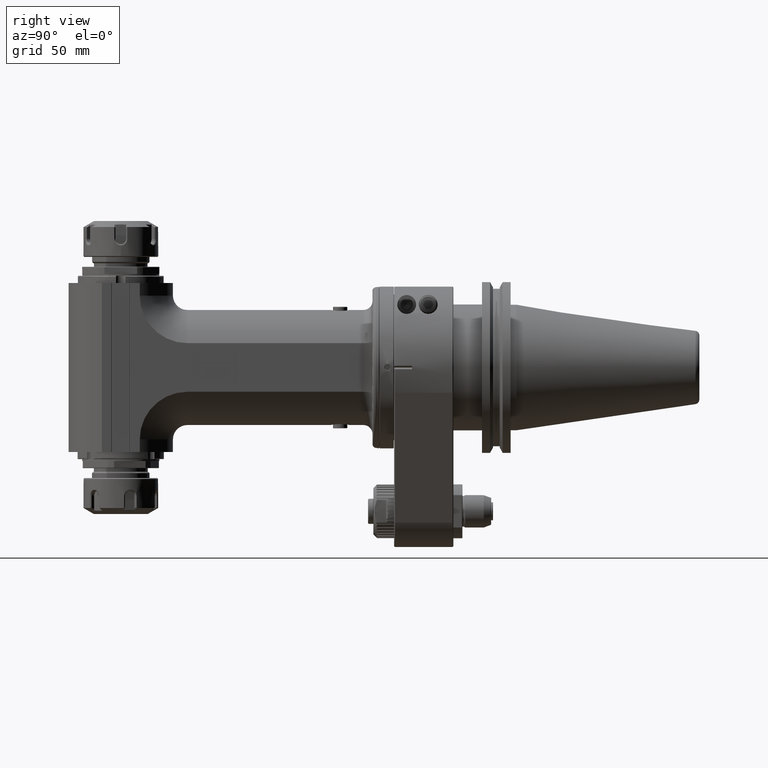
[diagram: clean part render]
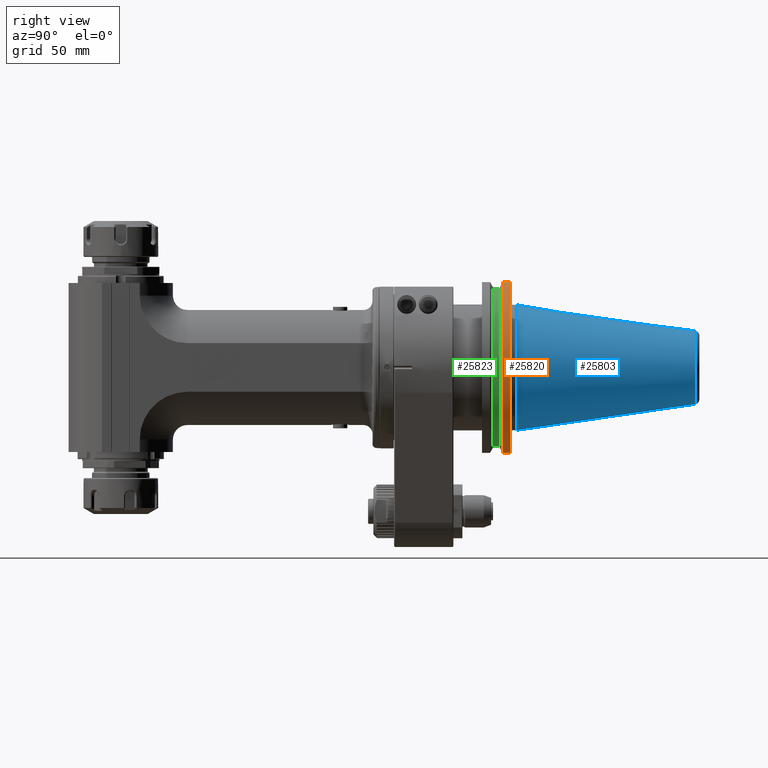
[diagram: same view with three faces highlighted in distinct colors, each labeled with its STEP entity id]
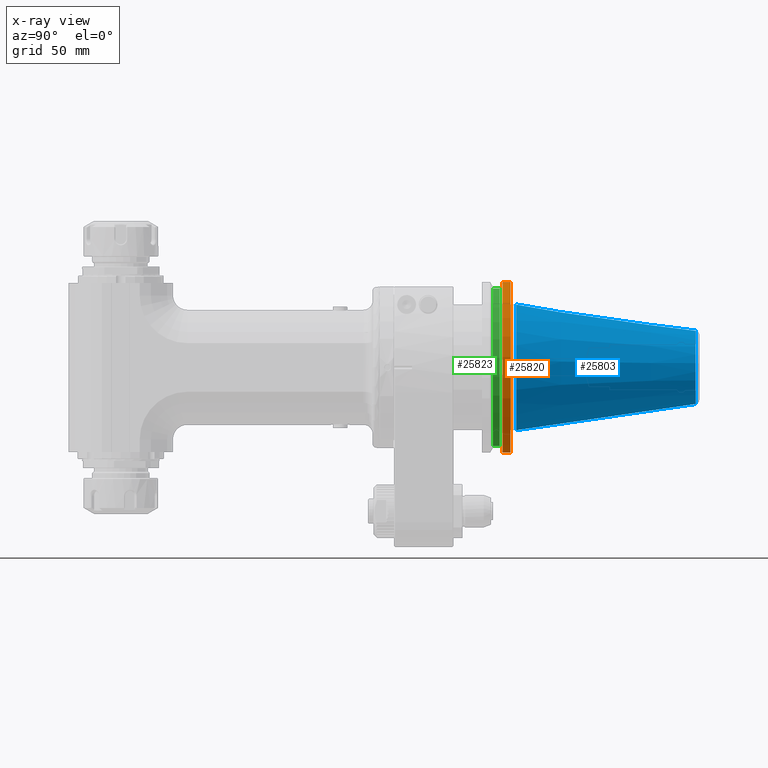
[diagram: x-ray of the same camera — body ghosted, the three highlighted faces saturated]
A machine part, right view with three faces highlighted in distinct colors.
The next image is the same camera in x-ray (body ghosted, the three faces saturated) — at least one of them is partly hidden behind the body in this view.
Their STEP definitions:

[orange] entity #25820 — the highlighted cylindrical surface (partial cylindrical patch) has radius 49.21 mm, axis along (0, -1, 0).
#1467=CIRCLE('',#27802,49.21);
#1478=CIRCLE('',#27828,49.21);
#2853=CYLINDRICAL_SURFACE('',#27827,49.21);
#3485=FACE_OUTER_BOUND('',#5056,.T.);
#5056=EDGE_LOOP('',(#19119,#19120,#19121,#19122));
#6972=LINE('',#40179,#8962);
#6992=LINE('',#40260,#8982);
#8962=VECTOR('',#31926,4.386823611981);
#8982=VECTOR('',#31986,4.386823611981);
#10994=VERTEX_POINT('',#40142);
#10995=VERTEX_POINT('',#40144);
#11007=VERTEX_POINT('',#40178);
#11030=VERTEX_POINT('',#40256);
#13992=EDGE_CURVE('',#10995,#10994,#1467,.T.);
#14007=EDGE_CURVE('',#10995,#11007,#6972,.T.);
#14042=EDGE_CURVE('',#11030,#10994,#6992,.T.);
#14043=EDGE_CURVE('',#11030,#11007,#1478,.T.);
#19119=ORIENTED_EDGE('',*,*,#14007,.F.);
#19120=ORIENTED_EDGE('',*,*,#13992,.T.);
#19121=ORIENTED_EDGE('',*,*,#14042,.F.);
#19122=ORIENTED_EDGE('',*,*,#14043,.T.);
#25820=ADVANCED_FACE('',(#3485),#2853,.T.);
#27802=AXIS2_PLACEMENT_3D('',#40145,#31905,#31906);
#27827=AXIS2_PLACEMENT_3D('',#40261,#31987,#31988);
#27828=AXIS2_PLACEMENT_3D('',#40262,#31989,#31990);
#31905=DIRECTION('center_axis',(0.,-1.,0.));
#31906=DIRECTION('ref_axis',(0.261125787441599,0.,-0.965304782508097));
#31926=DIRECTION('',(4.332751863939E-14,-1.,-8.422545679434E-14));
#31986=DIRECTION('',(-4.211272839717E-14,1.,-7.936629582543E-14));
#31987=DIRECTION('center_axis',(0.,-1.,0.));
#31988=DIRECTION('ref_axis',(0.,0.,1.));
#31989=DIRECTION('center_axis',(0.,1.,0.));
#31990=DIRECTION('ref_axis',(0.261125787441599,0.,0.965304782508097));
#40142=CARTESIAN_POINT('',(12.85,64.8,47.50264834722));
#40144=CARTESIAN_POINT('',(12.85,64.8,-47.50264834722));
#40145=CARTESIAN_POINT('Origin',(0.,64.8,-1.224645799147E-14));
#40178=CARTESIAN_POINT('',(12.85,60.41317638802,-47.50264834722));
#40179=CARTESIAN_POINT('',(12.85,64.8,-47.50264834722));
#40256=CARTESIAN_POINT('',(12.85,60.41317638802,47.50264834722));
#40260=CARTESIAN_POINT('',(12.85,60.41317638802,47.50264834722));
#40261=CARTESIAN_POINT('Origin',(0.,175.845,-1.224645799147E-14));
#40262=CARTESIAN_POINT('Origin',(0.,60.41317638802,-1.224645799147E-14));

[blue] entity #25803 — the highlighted conical surface has half-angle 8.3 deg.
#669=CONICAL_SURFACE('',#27796,27.65552420652,0.144862327915529);
#1461=CIRCLE('',#27793,20.38604841304);
#1463=CIRCLE('',#27795,20.38604841304);
#1464=CIRCLE('',#27797,34.925);
#3468=FACE_OUTER_BOUND('',#5036,.T.);
#5036=EDGE_LOOP('',(#19015,#19016,#19017,#19018,#19019));
#6955=LINE('',#40127,#8945);
#8945=VECTOR('',#31891,27.65552420652);
#10985=VERTEX_POINT('',#40119);
#10986=VERTEX_POINT('',#40120);
#10987=VERTEX_POINT('',#40125);
#13980=EDGE_CURVE('',#10985,#10986,#1461,.T.);
#13982=EDGE_CURVE('',#10986,#10985,#1463,.T.);
#13983=EDGE_CURVE('',#10987,#10987,#1464,.T.);
#13984=EDGE_CURVE('',#10987,#10986,#6955,.T.);
#19015=ORIENTED_EDGE('',*,*,#13983,.F.);
#19016=ORIENTED_EDGE('',*,*,#13984,.T.);
#19017=ORIENTED_EDGE('',*,*,#13982,.T.);
#19018=ORIENTED_EDGE('',*,*,#13980,.T.);
#19019=ORIENTED_EDGE('',*,*,#13984,.F.);
#25803=ADVANCED_FACE('',(#3468),#669,.T.);
#27793=AXIS2_PLACEMENT_3D('',#40121,#31881,#31882);
#27795=AXIS2_PLACEMENT_3D('',#40123,#31885,#31886);
#27796=AXIS2_PLACEMENT_3D('',#40124,#31887,#31888);
#27797=AXIS2_PLACEMENT_3D('',#40126,#31889,#31890);
#31881=DIRECTION('center_axis',(0.,-1.,0.));
#31882=DIRECTION('ref_axis',(0.00108059556212205,0.,0.999999416156445));
#31885=DIRECTION('center_axis',(0.,-1.,0.));
#31886=DIRECTION('ref_axis',(0.00108059556212205,0.,0.999999416156445));
#31887=DIRECTION('center_axis',(0.,-1.,0.));
#31888=DIRECTION('ref_axis',(0.,0.,1.));
#31889=DIRECTION('center_axis',(0.,-1.,0.));
#31890=DIRECTION('ref_axis',(0.,0.,-1.));
#31891=DIRECTION('',(-1.76785359492914E-17,0.989525789068969,0.144356201000973));
#40119=CARTESIAN_POINT('',(0.0220290734443338,167.6608905025,20.386036510777));
#40120=CARTESIAN_POINT('',(2.49657089362968E-15,167.660890502501,-20.3860484130436));
#40121=CARTESIAN_POINT('Origin',(0.,167.6608905025,-1.224645799147E-14));
#40123=CARTESIAN_POINT('Origin',(0.,167.6608905025,-1.224645799147E-14));
#40124=CARTESIAN_POINT('Origin',(0.,117.83044525125,-1.224645799147E-14));
#40125=CARTESIAN_POINT('',(0.,68.,-34.925));
#40126=CARTESIAN_POINT('Origin',(0.,68.,-1.224645799147E-14));
#40127=CARTESIAN_POINT('',(3.38682491982569E-15,117.83044525125,-27.65552420652));

[green] entity #25823 — the highlighted cylindrical surface (partial cylindrical patch) has radius 45.625 mm, axis along (0, -1, 0).
#1480=CIRCLE('',#27832,45.625);
#1481=CIRCLE('',#27834,45.625);
#2854=CYLINDRICAL_SURFACE('',#27833,45.625);
#3488=FACE_OUTER_BOUND('',#5059,.T.);
#5059=EDGE_LOOP('',(#19131,#19132,#19133,#19134));
#6974=LINE('',#40187,#8964);
#6990=LINE('',#40253,#8980);
#8964=VECTOR('',#31928,3.75);
#8980=VECTOR('',#31984,3.75);
#11009=VERTEX_POINT('',#40184);
#11010=VERTEX_POINT('',#40186);
#11027=VERTEX_POINT('',#40250);
#11028=VERTEX_POINT('',#40252);
#14010=EDGE_CURVE('',#11009,#11010,#6974,.T.);
#14039=EDGE_CURVE('',#11027,#11028,#6990,.T.);
#14045=EDGE_CURVE('',#11009,#11028,#1480,.T.);
#14046=EDGE_CURVE('',#11027,#11010,#1481,.T.);
#19131=ORIENTED_EDGE('',*,*,#14010,.F.);
#19132=ORIENTED_EDGE('',*,*,#14045,.T.);
#19133=ORIENTED_EDGE('',*,*,#14039,.F.);
#19134=ORIENTED_EDGE('',*,*,#14046,.T.);
#25823=ADVANCED_FACE('',(#3488),#2854,.T.);
#27832=AXIS2_PLACEMENT_3D('',#40266,#31997,#31998);
#27833=AXIS2_PLACEMENT_3D('',#40267,#31999,#32000);
#27834=AXIS2_PLACEMENT_3D('',#40268,#32001,#32002);
#31928=DIRECTION('',(0.,-1.,1.515824502955E-14));
#31984=DIRECTION('',(0.,1.,-1.705302565824E-14));
#31997=DIRECTION('center_axis',(0.,-1.,0.));
#31998=DIRECTION('ref_axis',(0.281643835616411,0.,-0.959519020061237));
#31999=DIRECTION('center_axis',(0.,-1.,0.));
#32000=DIRECTION('ref_axis',(0.,0.,1.));
#32001=DIRECTION('center_axis',(0.,1.,0.));
#32002=DIRECTION('ref_axis',(0.281643835616411,0.,0.959519020061237));
#40184=CARTESIAN_POINT('',(12.85,58.775,-43.77805529029));
#40186=CARTESIAN_POINT('',(12.85,55.025,-43.77805529029));
#40187=CARTESIAN_POINT('',(12.85,58.775,-43.77805529029));
#40250=CARTESIAN_POINT('',(12.85,55.025,43.77805529029));
#40252=CARTESIAN_POINT('',(12.85,58.775,43.77805529029));
#40253=CARTESIAN_POINT('',(12.85,55.025,43.77805529029));
#40266=CARTESIAN_POINT('Origin',(0.,58.775,-1.224645799147E-14));
#40267=CARTESIAN_POINT('Origin',(0.,60.76449402682,-1.224645799147E-14));
#40268=CARTESIAN_POINT('Origin',(0.,55.025,-1.224645799147E-14));